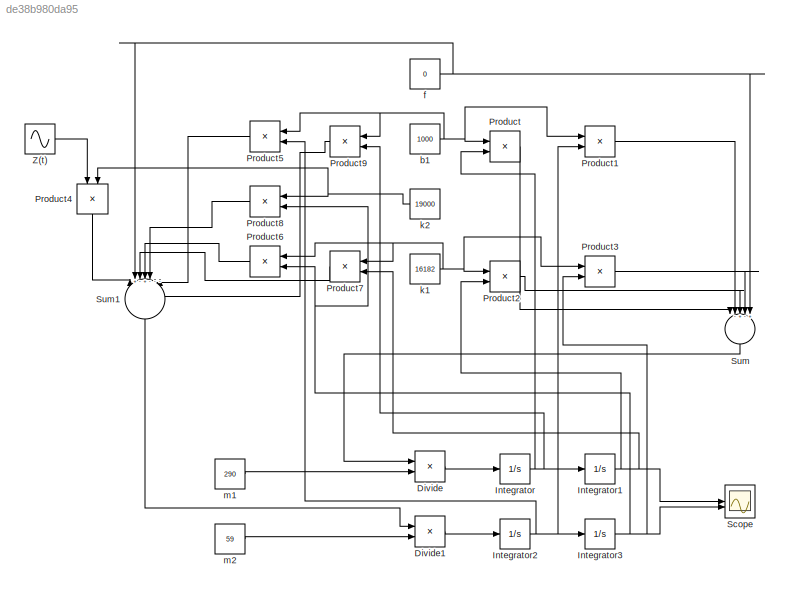
MODEL slx_de38b980da95
KIND model
CONFIG AbsTol = auto
CONFIG EnableMultiTasking = off
CONFIG FixedStep = auto
CONFIG MaxStep = 1e-3
CONFIG MinStep = auto
CONFIG RelTol = 1e-3
CONFIG SampleTimeConstraint = Unconstrained
CONFIG SolverName = VariableStepAuto
CONFIG StartTime = 0.0
CONFIG StopTime = 20.0
BLOCK [Product] Divide
  Inputs = */
BLOCK [Product] Divide1
  Inputs = */
BLOCK [Integrator] Integrator
BLOCK [Integrator] Integrator1
BLOCK [Integrator] Integrator2
BLOCK [Integrator] Integrator3
BLOCK [Product] Product
BLOCK [Product] Product1
BLOCK [Product] Product2
BLOCK [Product] Product3
BLOCK [Product] Product4
  NameLocation = left
BLOCK [Product] Product5
BLOCK [Product] Product6
BLOCK [Product] Product7
BLOCK [Product] Product8
BLOCK [Product] Product9
BLOCK [Scope] Scope
  ActiveDisplayYMaximum = 0.014220914230915677
  ActiveDisplayYMinimum = -0.0084053063265917358
  DataLogging = on
  DataLoggingSaveFormat = Structure With Time
  Floating = off
  GraphicalSettings = {"AxesScalingProperties":{"AlignXAxis":"Center","AlignYAxis":"Center","AutoScaleXAxisLimits":false,"AxesScaling":"Manual","AxesScalingNumUpdates":10,"ExpandOnly":true,"ScaleAxesLimitsAtStop":false,"XAxisDataRange":100,"YAxisDataRange":80},"DisplayProperties":{"ColorOrder":["auto","auto","auto","auto","auto","auto","auto","auto","auto","auto","auto","auto","auto","auto","auto","auto","auto","auto",...<+2151ch>
  MultipleDisplayCache = [{"MaxYLimMag":0.014220914230915677,"MaxYLimReal":0.014220914230915677,"MinYLimMag":0,"MinYLimReal":-0.0084053063265917358,"PlotAsMagnitudePhase":false,"ShowGrid":true,"ShowLegend":false,"Title":"%<SignalLabel>","YLabel":""}]
  NumInputPorts = 2
  ScopeFrameLocation = window
  Visible = on
  WasSavedAsWebScope = on
  WindowPosition = [1.000000,49.000000,1536.000000,793.000000,]
BLOCK [Sum] Sum
  Inputs = |-+-++
  NameLocation = left
BLOCK [Sum] Sum1
  Inputs = |+-+---+
  NameLocation = left
BLOCK [Sin] Z(t)
  Amplitude = 0.05
  Frequency = 0.5*pi
  SampleTime = 0
BLOCK [Constant] b1
  Value = 1000
BLOCK [Constant] f
  Value = 0
BLOCK [Constant] k1
  Value = 16182
BLOCK [Constant] k2
  Value = 19000
BLOCK [Constant] m1
  Value = 290
BLOCK [Constant] m2
  Value = 59
LINE Divide1:1 -> Integrator2:1
LINE Divide:1 -> Integrator:1
NET Integrator1:1 -> Product2:2, Product7:2, Scope:1
NET Integrator2:1 -> Integrator3:1, Product1:2, Product5:2
NET Integrator3:1 -> Product3:2, Product6:2, Product8:2, Scope:2
NET Integrator:1 -> Integrator1:1, Product9:2, Product:2
LINE Product1:1 -> Sum:2
LINE Product2:1 -> Sum:3
LINE Product3:1 -> Sum:4
LINE Product4:1 -> Sum1:1
LINE Product5:1 -> Sum1:6
LINE Product6:1 -> Sum1:4
LINE Product7:1 -> Sum1:3
LINE Product8:1 -> Sum1:5
LINE Product9:1 -> Sum1:7
LINE Product:1 -> Sum:1
LINE Sum1:1 -> Divide1:1
LINE Sum:1 -> Divide:1
LINE Z(t):1 -> Product4:1
NET b1:1 -> Product1:1, Product5:1, Product9:1, Product:1
NET f:1 -> Sum1:2, Sum:5
NET k1:1 -> Product2:1, Product3:1, Product6:1, Product7:1
NET k2:1 -> Product4:2, Product8:1
LINE m1:1 -> Divide:2
LINE m2:1 -> Divide1:2
note: NET lines group one-source signal fan-out (src -> all destinations, sorted); 1:1 wires keep LINE
